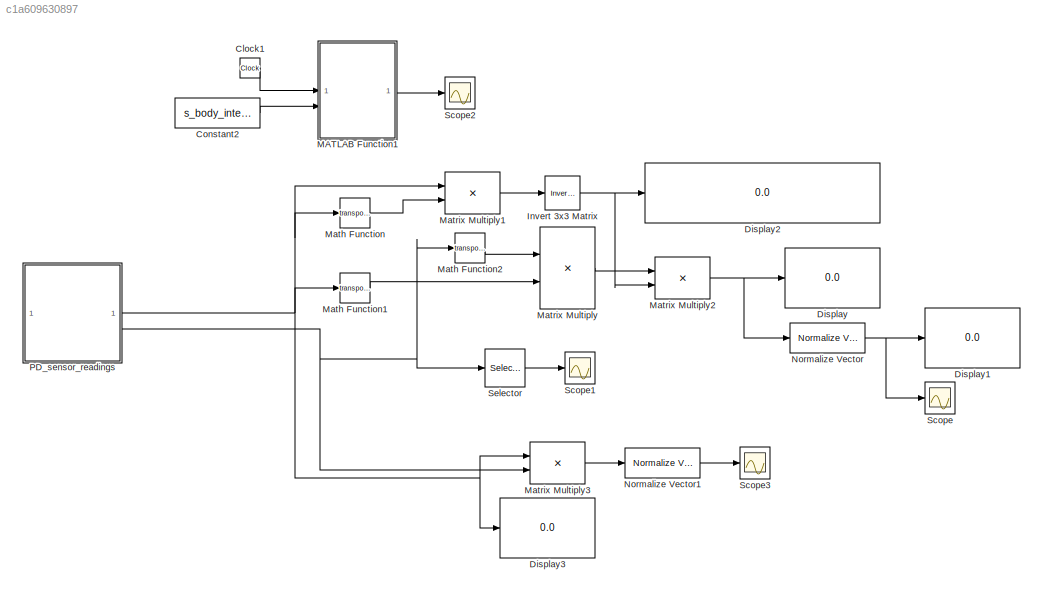
MODEL slx_c1a609630897
KIND model
CONFIG AbsTol = auto
CONFIG EnableMultiTasking = off
CONFIG FixedStep = auto
CONFIG MaxStep = auto
CONFIG MinStep = auto
CONFIG RelTol = 1e-3
CONFIG SampleTimeConstraint = Unconstrained
CONFIG SolverName = VariableStepAuto
CONFIG StartTime = 0.0
CONFIG StopTime = 326
BLOCK [Clock] Clock1
  Commented = on
BLOCK [Constant] Constant2
  Commented = on
  Value = s_body_interp{1}
BLOCK [Display] Display
  Decimation = 1
BLOCK [Display] Display1
  Decimation = 1
BLOCK [Display] Display2
  Decimation = 1
BLOCK [Display] Display3
  Decimation = 1
BLOCK [Reference] Invert 3x3 Matrix  REF=aerolibutil/Invert 
3x3 Matrix
  SourceBlock = aerolibutil/Invert \n3x3 Matrix
  SourceType = Invert 3x3 Matrix
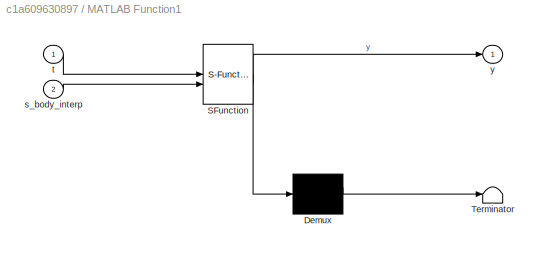
BLOCK [SubSystem] MATLAB Function1
  Commented = on
  ErrorFcn = Stateflow.Translate.translate
  PermitHierarchicalResolution = ExplicitOnly
  SFBlockType = MATLAB Function
  TreatAsAtomicUnit = on
BLOCK [Demux] MATLAB Function1/ Demux 
  Outputs = 1
BLOCK [S-Function] MATLAB Function1/ SFunction 
  EnableBusSupport = on
  FunctionName = sf_sfun
  PortCounts = [2 2]
  SFcnIsStateOwnerBlock = off
  SFunctionDeploymentMode = off
  Tag = Stateflow S-Function 1
BLOCK [Terminator] MATLAB Function1/ Terminator 
BLOCK [Inport] MATLAB Function1/s_body_interp
  Port = 2
BLOCK [Inport] MATLAB Function1/t
BLOCK [Outport] MATLAB Function1/y
BLOCK [Math] Math Function
  Operator = transpose
BLOCK [Math] Math Function1
  Operator = transpose
BLOCK [Math] Math Function2
  Operator = transpose
BLOCK [Product] Matrix Multiply
  Multiplication = Matrix(*)
BLOCK [Product] Matrix Multiply1
  Multiplication = Matrix(*)
BLOCK [Product] Matrix Multiply2
  Multiplication = Matrix(*)
BLOCK [Product] Matrix Multiply3
  Multiplication = Matrix(*)
BLOCK [Reference] Normalize Vector  REF=vrlib/Utilities/Normalize Vector
  SourceBlock = vrlib/Utilities/Normalize Vector
  SourceType = Normalize Vector
BLOCK [Reference] Normalize Vector1  REF=vrlib/Utilities/Normalize Vector
  SourceBlock = vrlib/Utilities/Normalize Vector
  SourceType = Normalize Vector
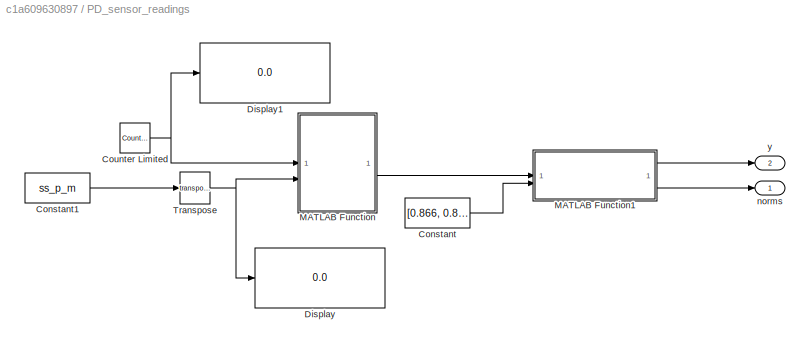
BLOCK [SubSystem] PD_sensor_readings
BLOCK [Constant] PD_sensor_readings/Constant
  Value = [0.866, 0.866, 0.866, 0.500, 0.500, 0.000, 0.500, 0.000, 0.000, 0.500, 0.000, 0.000, -0.866, -0.866, -0.866; 0.000, -0.433, 0.433, 0.866, -0.866, -0.866, 0.866, 0.866, 0.866, -0.866, -0.866, 0.000, -0.433, 0.000, 0.433; -0.500, 0.250, 0.250, 0.000, 0.000, -0.500, 0.000, -0.500, 0.500, 0.000, 0.500, 1.000, -0.250, 0.500, -0.250]
BLOCK [Constant] PD_sensor_readings/Constant1
  Value = ss_p_m
BLOCK [Reference] PD_sensor_readings/Counter Limited  REF=simulink/Sources/Counter
Limited
  SourceBlock = simulink/Sources/Counter\nLimited
  SourceType = Counter Limited
BLOCK [Display] PD_sensor_readings/Display
  Decimation = 1
BLOCK [Display] PD_sensor_readings/Display1
  Decimation = 1
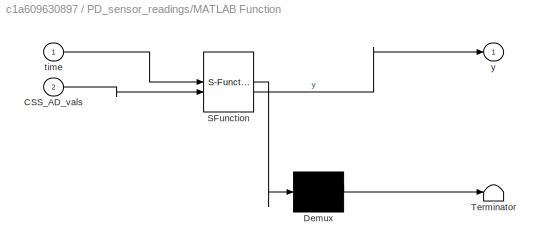
BLOCK [SubSystem] PD_sensor_readings/MATLAB Function
  ErrorFcn = Stateflow.Translate.translate
  PermitHierarchicalResolution = ExplicitOnly
  SFBlockType = MATLAB Function
  TreatAsAtomicUnit = on
BLOCK [Demux] PD_sensor_readings/MATLAB Function/ Demux 
  Outputs = 1
BLOCK [S-Function] PD_sensor_readings/MATLAB Function/ SFunction 
  EnableBusSupport = on
  FunctionName = sf_sfun
  PortCounts = [2 2]
  SFcnIsStateOwnerBlock = off
  SFunctionDeploymentMode = off
  Tag = Stateflow S-Function 2
BLOCK [Terminator] PD_sensor_readings/MATLAB Function/ Terminator 
BLOCK [Inport] PD_sensor_readings/MATLAB Function/CSS_AD_vals
  Port = 2
BLOCK [Inport] PD_sensor_readings/MATLAB Function/time
BLOCK [Outport] PD_sensor_readings/MATLAB Function/y
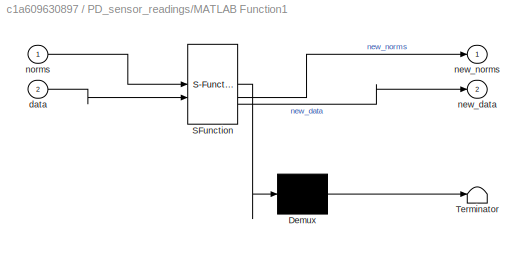
BLOCK [SubSystem] PD_sensor_readings/MATLAB Function1
  ErrorFcn = Stateflow.Translate.translate
  PermitHierarchicalResolution = ExplicitOnly
  SFBlockType = MATLAB Function
  TreatAsAtomicUnit = on
BLOCK [Demux] PD_sensor_readings/MATLAB Function1/ Demux 
  Outputs = 1
BLOCK [S-Function] PD_sensor_readings/MATLAB Function1/ SFunction 
  EnableBusSupport = on
  FunctionName = sf_sfun
  PortCounts = [2 3]
  SFcnIsStateOwnerBlock = off
  SFunctionDeploymentMode = off
  Tag = Stateflow S-Function 3
BLOCK [Terminator] PD_sensor_readings/MATLAB Function1/ Terminator 
BLOCK [Inport] PD_sensor_readings/MATLAB Function1/data
  Port = 2
BLOCK [Outport] PD_sensor_readings/MATLAB Function1/new_data
  Port = 2
BLOCK [Outport] PD_sensor_readings/MATLAB Function1/new_norms
BLOCK [Inport] PD_sensor_readings/MATLAB Function1/norms
BLOCK [Math] PD_sensor_readings/Transpose
  Operator = transpose
BLOCK [Outport] PD_sensor_readings/norms
BLOCK [Outport] PD_sensor_readings/y
  Port = 2
BLOCK [Scope] Scope
  Floating = off
  NumInputPorts = 1
  ScopeSpecificationString = Simulink.scopes.TimeScopeBlockCfg('CurrentConfiguration', extmgr.ConfigurationSet(extmgr.Configuration('Core','General UI',true),extmgr.Configuration('Core','Source UI',true),extmgr.Configuration('Sources','WiredSimulink',true),extmgr.Configuration('Visuals','Time Domain',true,'SerializedDisplays',{struct('MinYLimReal','-1.16731','MaxYLimReal','0.63918','YLabelReal','','MinYLimMag','0.00000','MaxY...<+1552ch>
BLOCK [Scope] Scope1
  Floating = off
  NumInputPorts = 1
  ScopeSpecificationString = Simulink.scopes.TimeScopeBlockCfg('CurrentConfiguration', extmgr.ConfigurationSet(extmgr.Configuration('Core','General UI',true),extmgr.Configuration('Core','Source UI',true),extmgr.Configuration('Sources','WiredSimulink',true,'DataLoggingVariableName','ScopeData1'),extmgr.Configuration('Visuals','Time Domain',true,'SerializedDisplays',{struct('MinYLimReal','-444.625','MaxYLimReal','4001.625','YLa...<+1754ch>
BLOCK [Scope] Scope2
  Commented = on
  Floating = off
  NumInputPorts = 1
  ScopeSpecificationString = Simulink.scopes.TimeScopeBlockCfg('CurrentConfiguration', extmgr.ConfigurationSet(extmgr.Configuration('Core','General UI',true),extmgr.Configuration('Core','Source UI',true),extmgr.Configuration('Sources','WiredSimulink',true,'DataLoggingVariableName','ScopeData2'),extmgr.Configuration('Visuals','Time Domain',true,'SerializedDisplays',{struct('MinYLimReal','-1.24972','MaxYLimReal','1.24997','YLab...<+1483ch>
BLOCK [Scope] Scope3
  Floating = off
  NumInputPorts = 1
  ScopeSpecificationString = Simulink.scopes.TimeScopeBlockCfg('CurrentConfiguration', extmgr.ConfigurationSet(extmgr.Configuration('Core','General UI',true),extmgr.Configuration('Core','Source UI',true),extmgr.Configuration('Sources','WiredSimulink',true,'DataLoggingVariableName','ScopeData3'),extmgr.Configuration('Visuals','Time Domain',true,'SerializedDisplays',{struct('MinYLimReal','-0.76289','MaxYLimReal','1.19085','YLab...<+1622ch>
BLOCK [Selector] Selector
  IndexOptions = Index vector (dialog)
  Indices = [1:15]
  InputPortWidth = 15
  OutputSizes = 1
LINE Clock1:1 -> MATLAB Function1:1
LINE Constant2:1 -> MATLAB Function1:2
NET Invert 3x3 Matrix:1 -> Display2:1, Matrix Multiply2:2
LINE MATLAB Function1:1 -> Scope2:1
LINE Math Function1:1 -> Matrix Multiply:2
LINE Math Function2:1 -> Matrix Multiply:1
LINE Math Function:1 -> Matrix Multiply1:2
LINE Matrix Multiply1:1 -> Invert 3x3 Matrix:1
NET Matrix Multiply2:1 -> Display:1, Normalize Vector:1
LINE Matrix Multiply3:1 -> Normalize Vector1:1
LINE Matrix Multiply:1 -> Matrix Multiply2:1
LINE Normalize Vector1:1 -> Scope3:1
NET Normalize Vector:1 -> Display1:1, Scope:1
LINE PD_sensor_readings/Constant1:1 -> PD_sensor_readings/Transpose:1
LINE PD_sensor_readings/Constant:1 -> PD_sensor_readings/MATLAB Function1:2
NET PD_sensor_readings/Counter Limited:1 -> PD_sensor_readings/Display1:1, PD_sensor_readings/MATLAB Function:1
LINE PD_sensor_readings/MATLAB Function1:1 -> PD_sensor_readings/y:1
LINE PD_sensor_readings/MATLAB Function1:2 -> PD_sensor_readings/norms:1
LINE PD_sensor_readings/MATLAB Function:1 -> PD_sensor_readings/MATLAB Function1:1
NET PD_sensor_readings/Transpose:1 -> PD_sensor_readings/Display:1, PD_sensor_readings/MATLAB Function:2
NET PD_sensor_readings:1 -> Display3:1, Math Function1:1, Math Function:1, Matrix Multiply1:1, Matrix Multiply3:1
NET PD_sensor_readings:2 -> Math Function2:1, Matrix Multiply3:2, Selector:1
LINE Selector:1 -> Scope1:1
note: NET lines group one-source signal fan-out (src -> all destinations, sorted); 1:1 wires keep LINE
CHART MATLAB Function1 states=1 transitions=1
  STATE_LABEL 'eML_blk_kernel()'
  STATE_LABEL 'SCRIPT:\nfunction y = get_sb(t, s_body_interp)\n\nidx = floor(t)+1;\n% for i = 1:4\n%     CSS_AD_vals(1,:) = CSS_AD_vals(1,:) - min(CSS_AD_vals(1,:));\n% end\ny = s_body_interp(:, idx);'
CHART PD_sensor_readings/MATLAB Function states=1 transitions=1
  STATE_LABEL 'eML_blk_kernel()'
  STATE_LABEL 'SCRIPT:\nfunction y = get_b(time, CSS_AD_vals)\n\n% means = zeros(5);\n% % 1. Find the average value for each CSS board\n% for i = 1:5 %iterate through CSS boards\n%     means(i) = mean(CSS_AD_vals((4*i:(4*i+4))));\n% end\n\nidx = time+1;\n\n% 2. Zero out all individual PDs that are below the voltage threshold\nvoltage_threshold = 2750;\n% for i = 1:16\nfor i = 1:15\n    if (CSS_AD_vals(i, idx) < voltage_thresho...<+409ch>'
CHART PD_sensor_readings/MATLAB Function1 states=1 transitions=1
  STATE_LABEL 'eML_blk_kernel()'
  STATE_LABEL "SCRIPT:\nfunction [new_norms, new_data] = fcn(norms, data)\n%#codegen\n% [new_data, idx] = maxk(data, 6);\n% new_norms = zeros(6, size(norms,1), 'like', norms);\n% new_norms(:, :) = norms(idx);\n% new_norms = new_norms';\n    new_norms = norms;\n    new_data = data;\nend"
CHART  states=0 transitions=0
CHART  states=0 transitions=0
CHART  states=0 transitions=0
